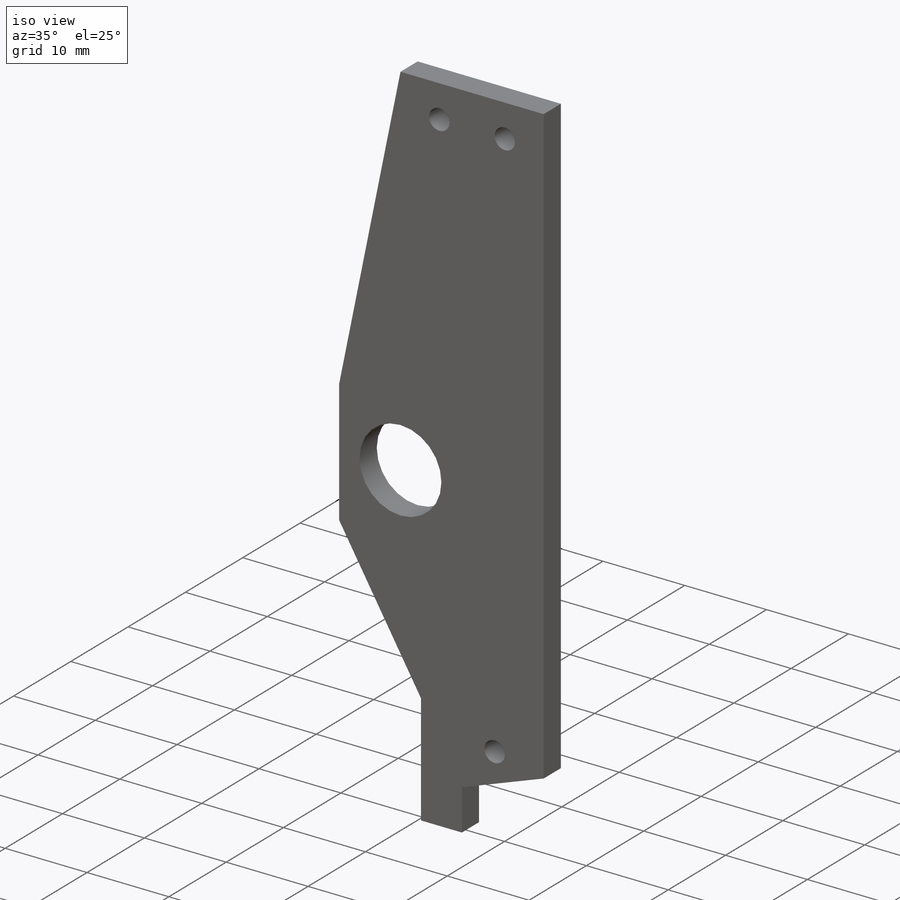
[diagram: iso view]
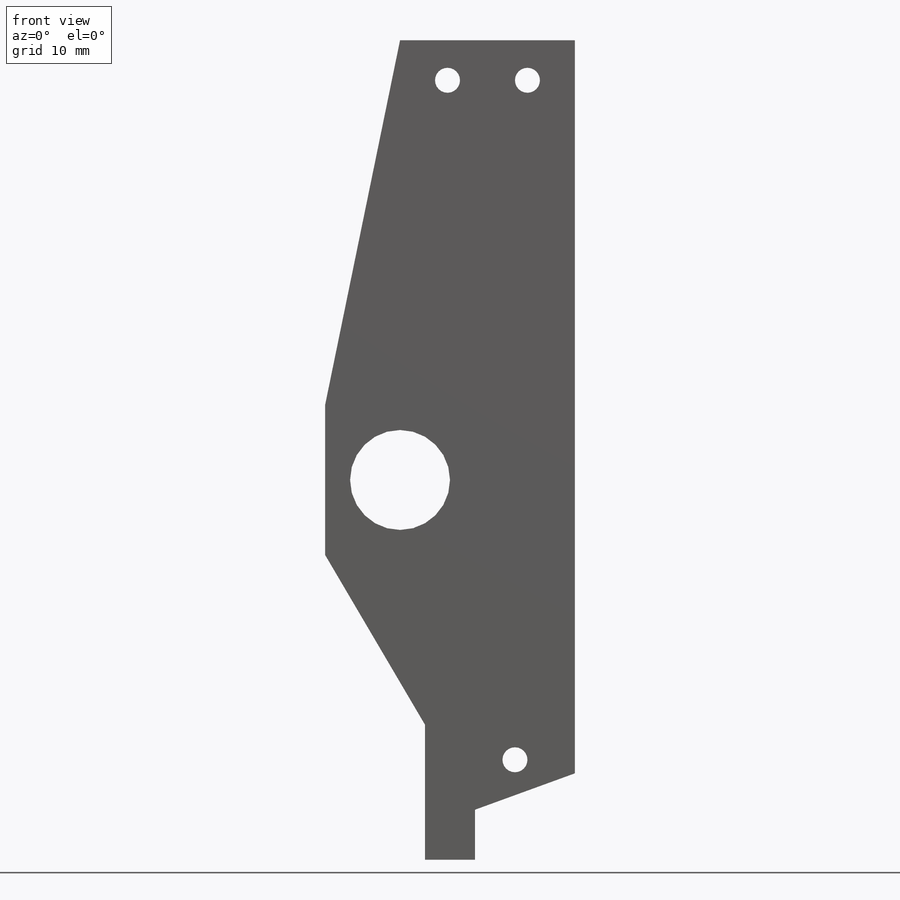
[diagram: front view]
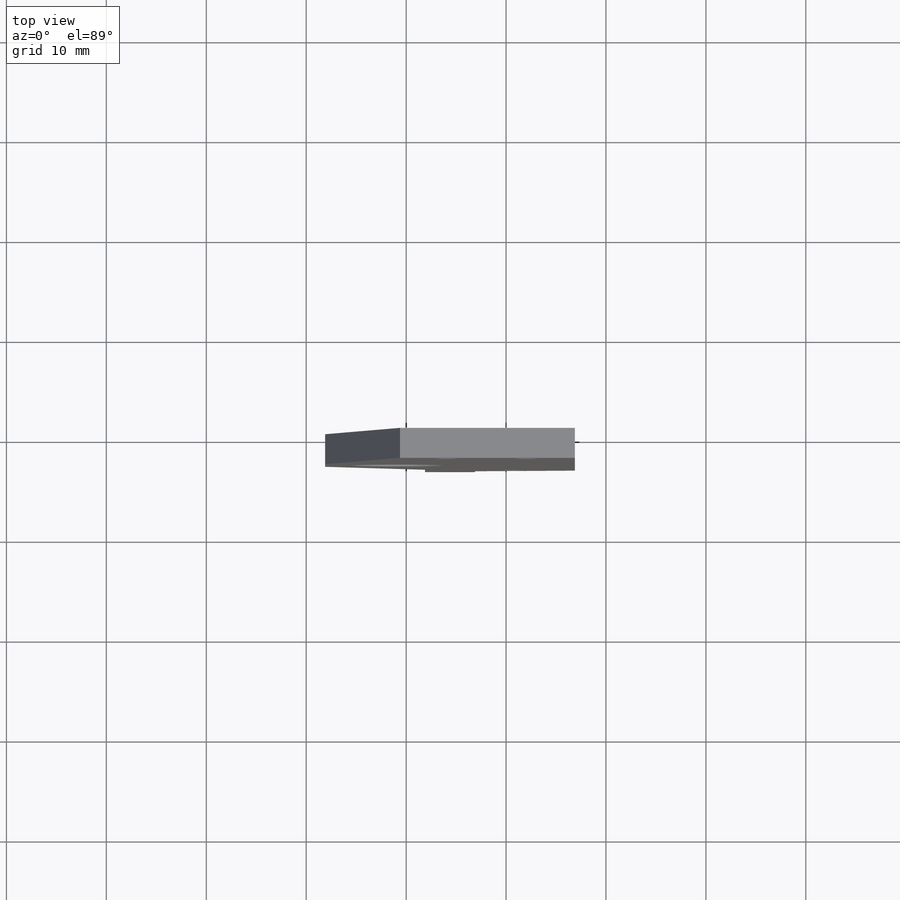
[diagram: top view]
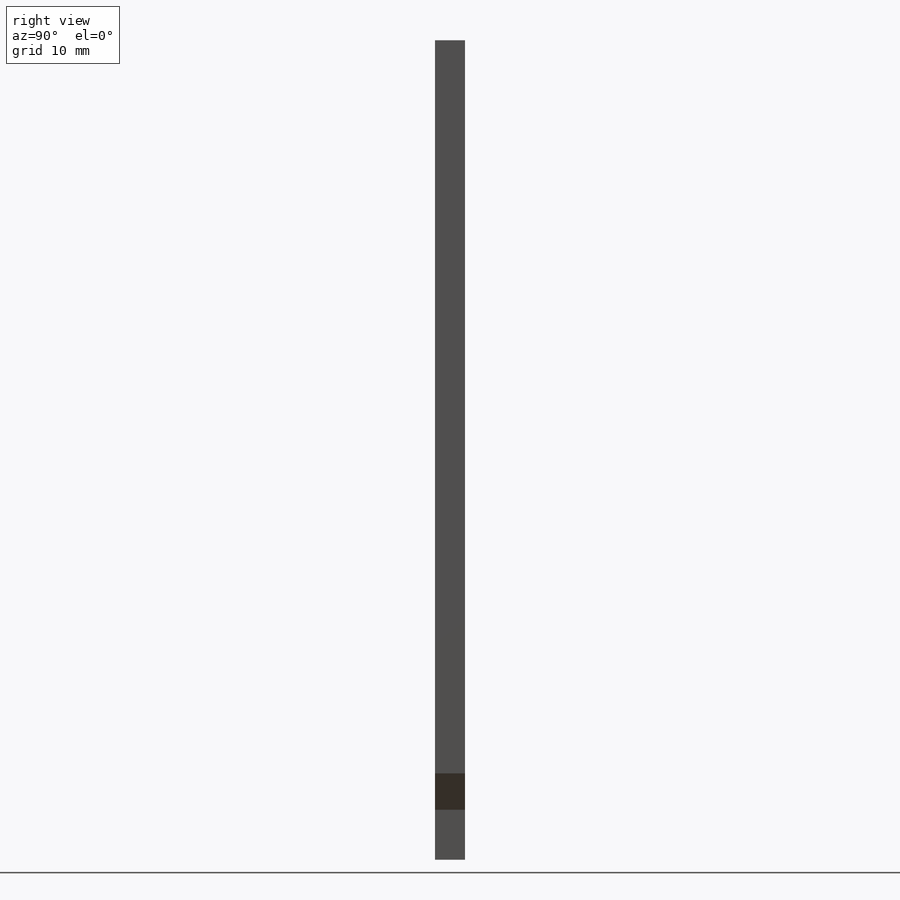
[diagram: right view]
SOLIDWORKS PART (.sldprt)
format: sldprt  version: not decoded by parser v0  size: 206,848 bytes
history: native  units: mm
features: sketch x6, extrude x4, cut_extrude x2, material x1 (+12 scaffold rows collapsed)
feature tree (25):
  scaffold x12  (default folders/planes/origin — collapsed)
  material  "Material <not specified>"
  sketch  "Sketch1"  dims[D1=77.0mm D2=10.0mm]
  extrude  "Boss-Extrude1"  Depth=3mm
  sketch  "Sketch2"  dims[D1=25.5mm D2=15.0mm D3=15.0mm]
  extrude  "Boss-Extrude2"  Depth=3mm
  sketch  "Sketch3"  dims[D1=~54.146583mm]
  extrude  "Boss-Extrude3"  Depth=3mm
  sketch  "Sketch4"  dims[D1=~39.219546mm]
  extrude  "Boss-Extrude4"  Depth=3mm
  sketch  "Sketch5"  dims[c1.D1=~4.653183mm c1.D3=~1.553602mm c1.D5=~1.604581mm c2.D3=~2.392841mm c2.D1=7.5mm c2.D2=7.5mm c3.D3=4.0mm c3.D4=3.0mm c3.D5=4.0mm c3.D6=6.0mm c3.D7=6.0mm c3.D8=4.0mm c3.D2=7.5mm c4.D3=10.0deg c5.D3=4.0mm c5.D4=4.0mm c5.D5=4.0mm c5.D6=4.0mm c5.D7=4.0mm c5.D8=5.0mm c5.D9=20.0deg c6.D8=5.0mm]
  cut_extrude  "Cut-Extrude1"  Depth=3mm
  sketch  "Sketch6"
  cut_extrude  "Cut-Extrude2"  Depth=10mm
decode coverage: 11 of 12 modeling features carry decoded parameters
note: ~ marks probable driven/reference dimensions
note: suppression state not decoded; provenance and decode notes live in map.json
